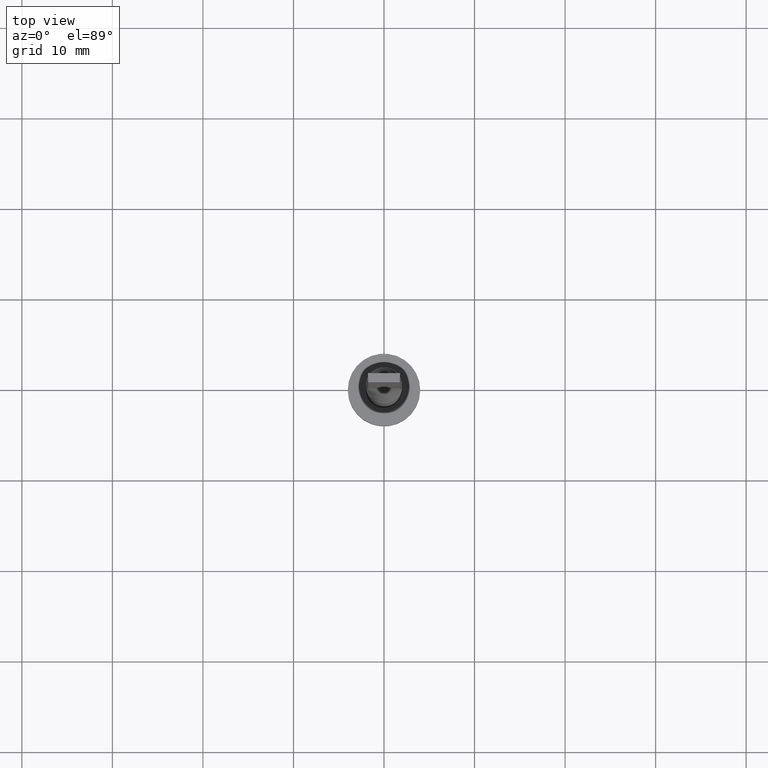
[diagram: clean part render]
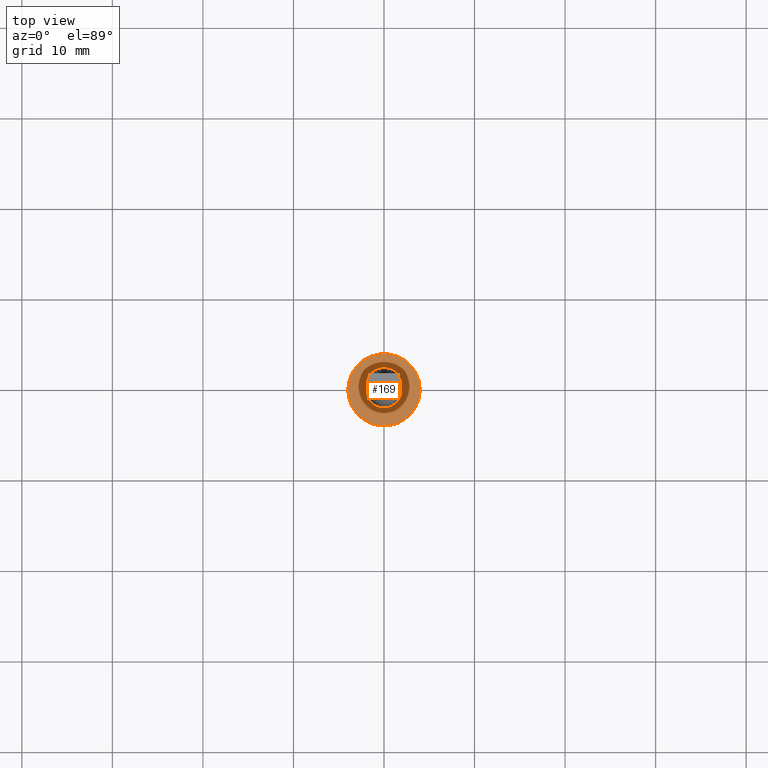
[diagram: same view with one face highlighted and labeled with its STEP entity id]
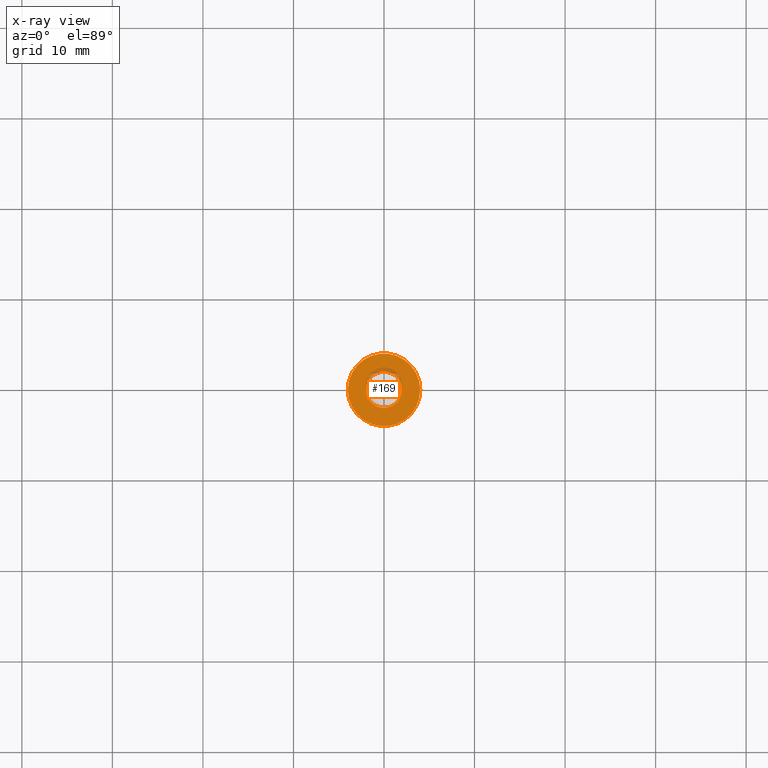
[diagram: x-ray of the same camera — body ghosted, the highlighted face saturated]
A machine part, top view. The second image highlights one B-rep face of the part: STEP entity #169.
The next image is the same camera in x-ray: the body ghosted, the highlighted face saturated — about 5% of this face is hidden behind the body in this view.
In plain terms, the highlighted planar face has unit normal (0, 0, 1).
Its self-contained STEP definition (entity closure, byte-faithful):
#28 = AXIS2_PLACEMENT_3D ( 'NONE', #455, #460, #414 ) ;
#29 = CARTESIAN_POINT ( 'NONE',  ( -4.000000000000000000, 0.000000000000000000, 3.000000000000000000 ) ) ;
#31 = AXIS2_PLACEMENT_3D ( 'NONE', #106, #284, #152 ) ;
#41 = AXIS2_PLACEMENT_3D ( 'NONE', #304, #481, #119 ) ;
#83 = DIRECTION ( 'NONE',  ( 1.000000000000000000, 0.000000000000000000, 0.000000000000000000 ) ) ;
#84 = CARTESIAN_POINT ( 'NONE',  ( 2.000000000000000000, 2.449293598294706414E-16, 3.000000000000000000 ) ) ;
#94 = EDGE_CURVE ( 'NONE', #387, #101, #317, .T. ) ;
#101 = VERTEX_POINT ( 'NONE', #29 ) ;
#106 = CARTESIAN_POINT ( 'NONE',  ( 0.000000000000000000, 0.000000000000000000, 3.000000000000000000 ) ) ;
#119 = DIRECTION ( 'NONE',  ( 1.000000000000000000, 0.000000000000000000, 0.000000000000000000 ) ) ;
#152 = DIRECTION ( 'NONE',  ( 1.000000000000000000, 0.000000000000000000, 0.000000000000000000 ) ) ;
#167 = ORIENTED_EDGE ( 'NONE', *, *, #508, .F. ) ;
#169 = ADVANCED_FACE ( 'NONE', ( #270, #313 ), #371, .T. ) ;
#171 = CARTESIAN_POINT ( 'NONE',  ( 4.000000000000000000, 4.898587196589412829E-16, 3.000000000000000000 ) ) ;
#210 = ORIENTED_EDGE ( 'NONE', *, *, #94, .T. ) ;
#219 = EDGE_CURVE ( 'NONE', #101, #387, #282, .T. ) ;
#236 = DIRECTION ( 'NONE',  ( 0.000000000000000000, 0.000000000000000000, 1.000000000000000000 ) ) ;
#260 = EDGE_LOOP ( 'NONE', ( #287, #210 ) ) ;
#270 = FACE_BOUND ( 'NONE', #337, .T. ) ;
#274 = DIRECTION ( 'NONE',  ( 1.000000000000000000, 0.000000000000000000, 0.000000000000000000 ) ) ;
#282 = CIRCLE ( 'NONE', #31, 4.000000000000000000 ) ;
#284 = DIRECTION ( 'NONE',  ( 0.000000000000000000, 0.000000000000000000, 1.000000000000000000 ) ) ;
#287 = ORIENTED_EDGE ( 'NONE', *, *, #219, .T. ) ;
#304 = CARTESIAN_POINT ( 'NONE',  ( 0.000000000000000000, 0.000000000000000000, 3.000000000000000000 ) ) ;
#313 = FACE_OUTER_BOUND ( 'NONE', #260, .T. ) ;
#314 = CARTESIAN_POINT ( 'NONE',  ( 0.000000000000000000, 0.000000000000000000, 3.000000000000000000 ) ) ;
#317 = CIRCLE ( 'NONE', #408, 4.000000000000000000 ) ;
#327 = VERTEX_POINT ( 'NONE', #575 ) ;
#333 = EDGE_CURVE ( 'NONE', #327, #334, #476, .T. ) ;
#334 = VERTEX_POINT ( 'NONE', #84 ) ;
#337 = EDGE_LOOP ( 'NONE', ( #443, #167 ) ) ;
#371 = PLANE ( 'NONE',  #28 ) ;
#387 = VERTEX_POINT ( 'NONE', #171 ) ;
#394 = AXIS2_PLACEMENT_3D ( 'NONE', #314, #236, #274 ) ;
#408 = AXIS2_PLACEMENT_3D ( 'NONE', #491, #436, #83 ) ;
#414 = DIRECTION ( 'NONE',  ( 1.000000000000000000, 0.000000000000000000, -0.000000000000000000 ) ) ;
#436 = DIRECTION ( 'NONE',  ( 0.000000000000000000, 0.000000000000000000, 1.000000000000000000 ) ) ;
#443 = ORIENTED_EDGE ( 'NONE', *, *, #333, .F. ) ;
#454 = CIRCLE ( 'NONE', #394, 2.000000000000000000 ) ;
#455 = CARTESIAN_POINT ( 'NONE',  ( 0.000000000000000000, 0.000000000000000000, 3.000000000000000000 ) ) ;
#460 = DIRECTION ( 'NONE',  ( 0.000000000000000000, 0.000000000000000000, 1.000000000000000000 ) ) ;
#476 = CIRCLE ( 'NONE', #41, 2.000000000000000000 ) ;
#481 = DIRECTION ( 'NONE',  ( 0.000000000000000000, 0.000000000000000000, 1.000000000000000000 ) ) ;
#491 = CARTESIAN_POINT ( 'NONE',  ( 0.000000000000000000, 0.000000000000000000, 3.000000000000000000 ) ) ;
#508 = EDGE_CURVE ( 'NONE', #334, #327, #454, .T. ) ;
#575 = CARTESIAN_POINT ( 'NONE',  ( -2.000000000000000000, 0.000000000000000000, 3.000000000000000000 ) ) ;